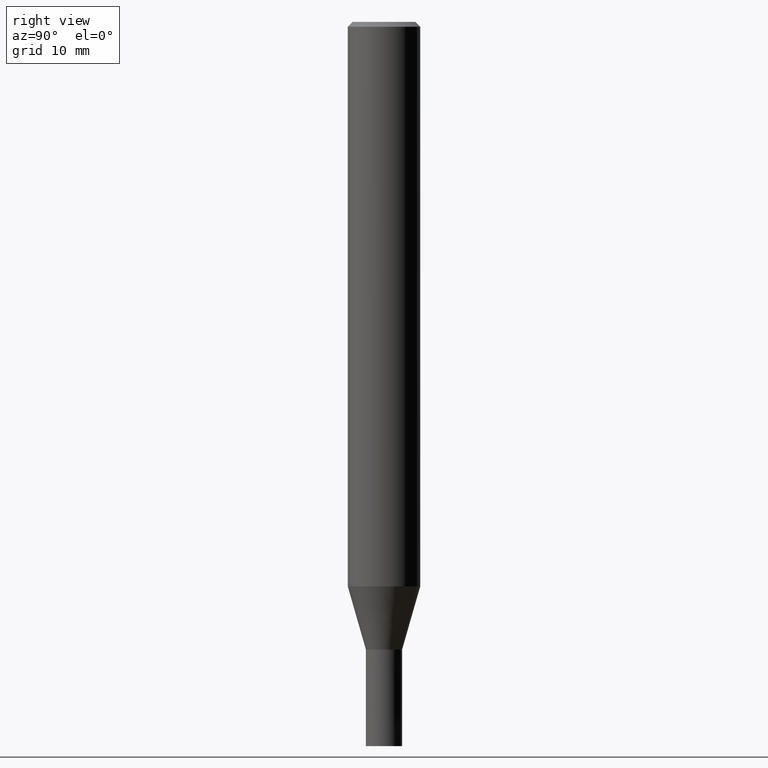
[diagram: clean part render]
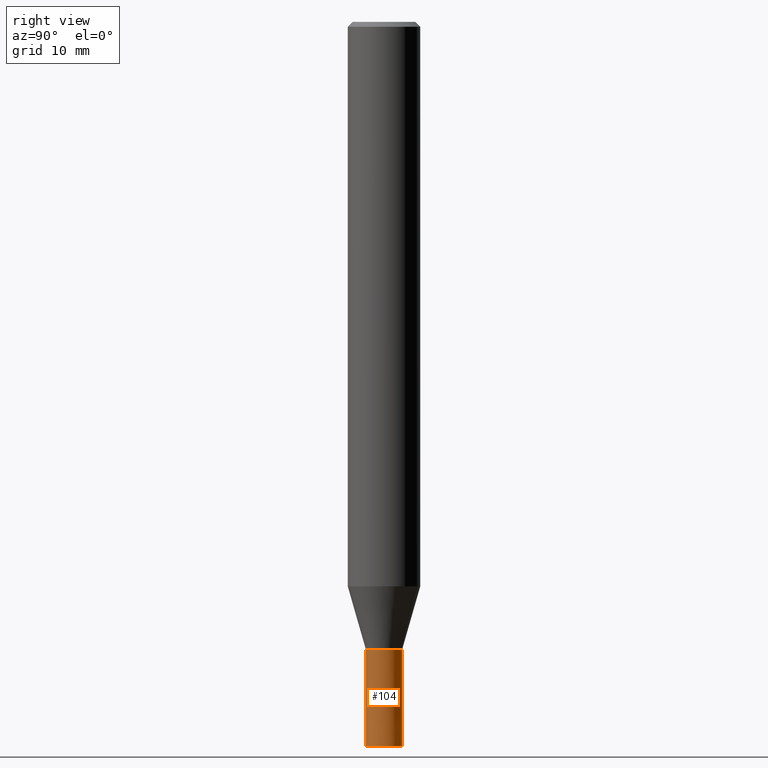
[diagram: same view with one face highlighted and labeled with its STEP entity id]
A machine part, right view. The second image highlights one B-rep face of the part: STEP entity #104.
In plain terms, the highlighted conical surface has half-angle 0.001 deg.
Its self-contained STEP definition (entity closure, byte-faithful):
#92=EDGE_CURVE('',#170,#130,#214,.T.);
#104=ADVANCED_FACE('',(#227),#228,.T.);
#108=EDGE_CURVE('',#130,#182,#232,.T.);
#116=EDGE_CURVE('',#182,#144,#240,.T.);
#130=VERTEX_POINT('',#255);
#144=VERTEX_POINT('',#270);
#168=EDGE_CURVE('',#170,#144,#300,.T.);
#170=VERTEX_POINT('',#302);
#182=VERTEX_POINT('',#316);
#214=LINE('',#345,#346);
#227=FACE_OUTER_BOUND('',#362,.T.);
#228=CONICAL_SURFACE('',#363,1.49995,1.24999999993476E-005);
#232=CIRCLE('',#369,1.5);
#240=LINE('',#379,#380);
#255=CARTESIAN_POINT('',(0.0,1.5,-60.0));
#270=CARTESIAN_POINT('',(1.83678707009818E-016,-1.4999,-52.0));
#300=CIRCLE('',#451,1.4999);
#302=CARTESIAN_POINT('',(0.0,1.4999,-52.0));
#316=CARTESIAN_POINT('',(1.83690953073357E-016,-1.5,-60.0));
#345=CARTESIAN_POINT('',(-1.83684830041587E-016,1.49995,-56.0));
#346=VECTOR('',#488,1.0);
#362=EDGE_LOOP('',(#504,#505,#506,#507));
#363=AXIS2_PLACEMENT_3D('',#508,#509,#510);
#369=AXIS2_PLACEMENT_3D('',#514,#515,#516);
#379=CARTESIAN_POINT('',(1.83684830041588E-016,-1.49995,-56.0));
#380=VECTOR('',#520,1.0);
#451=AXIS2_PLACEMENT_3D('',#590,#591,#592);
#488=DIRECTION('',(-1.53075794215821E-021,1.24999999990221E-005,-0.999999999921875));
#504=ORIENTED_EDGE('',*,*,#92,.F.);
#505=ORIENTED_EDGE('',*,*,#168,.T.);
#506=ORIENTED_EDGE('',*,*,#116,.F.);
#507=ORIENTED_EDGE('',*,*,#108,.F.);
#508=CARTESIAN_POINT('',(0.0,0.0,-56.0));
#509=DIRECTION('',(0.0,-0.0,-1.0));
#510=DIRECTION('',(0.0,1.0,0.0));
#514=CARTESIAN_POINT('',(0.0,0.0,-60.0));
#515=DIRECTION('',(0.0,0.0,-1.0));
#516=DIRECTION('',(0.0,1.0,0.0));
#520=DIRECTION('',(-1.53075794215821E-021,1.24999999990221E-005,0.999999999921875));
#590=CARTESIAN_POINT('',(0.0,0.0,-52.0));
#591=DIRECTION('',(0.0,0.0,-1.0));
#592=DIRECTION('',(0.0,1.0,0.0));